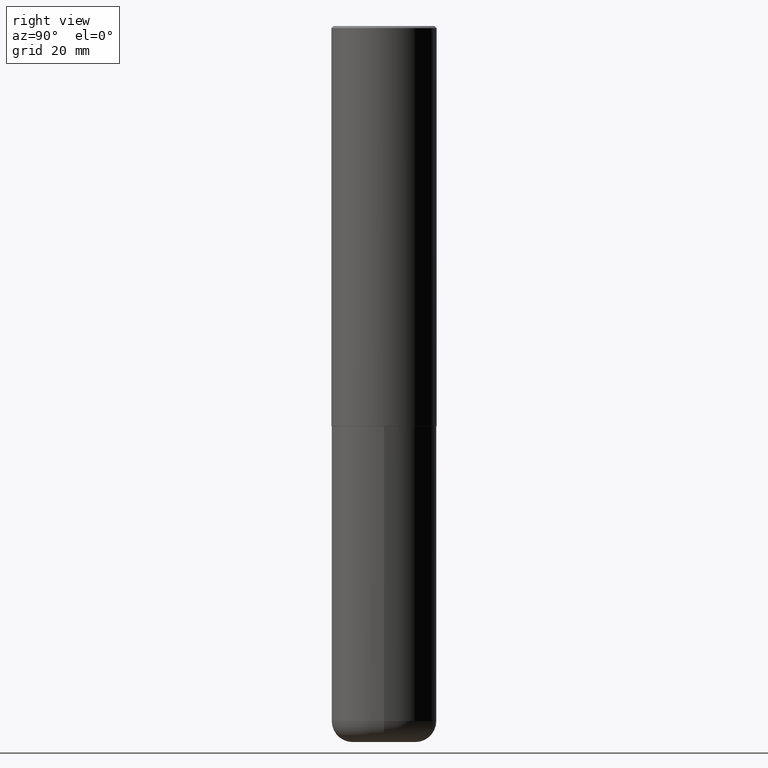
[diagram: clean part render]
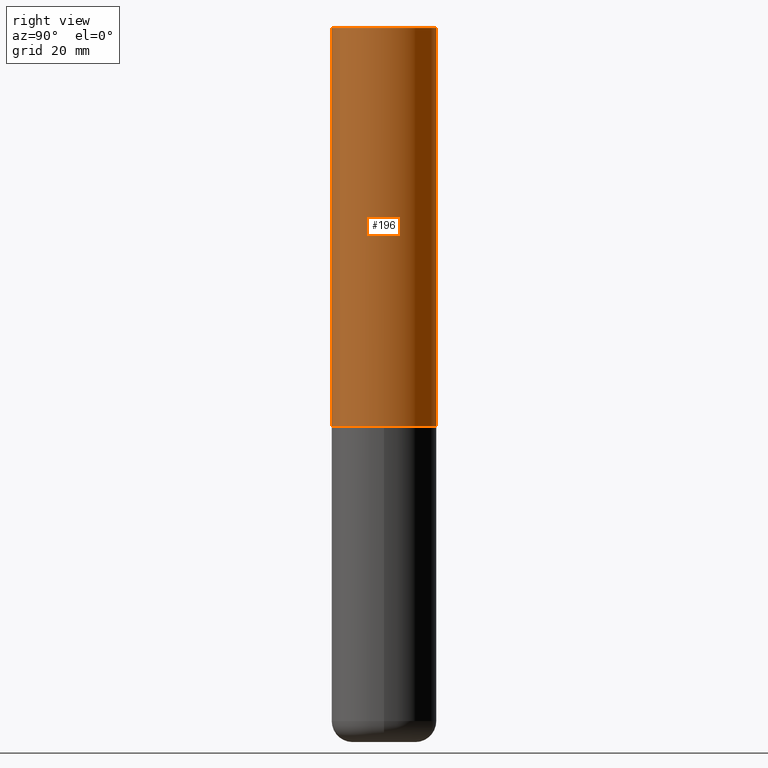
[diagram: same view with one face highlighted and labeled with its STEP entity id]
A machine part, right view. The second image highlights one B-rep face of the part: STEP entity #196.
In plain terms, the highlighted cylindrical surface (partial cylindrical patch) has radius 12.5006 mm, axis along (-0, 0, 1).
Its self-contained STEP definition (entity closure, byte-faithful):
#1 = VECTOR ( 'NONE', #215, 39.37007874015748143 ) ;
#11 = CYLINDRICAL_SURFACE ( 'NONE', #338, 0.4921500000000000874 ) ;
#22 = AXIS2_PLACEMENT_3D ( 'NONE', #302, #137, #390 ) ;
#37 = CARTESIAN_POINT ( 'NONE',  ( -3.436665081823207030E-15, -0.4921500000000134101, -3.739099999999998758 ) ) ;
#48 = VERTEX_POINT ( 'NONE', #37 ) ;
#77 = CARTESIAN_POINT ( 'NONE',  ( 3.496936074043333291E-15, 0.4921500000000000874, -1.717974658438411319E-15 ) ) ;
#81 = ORIENTED_EDGE ( 'NONE', *, *, #104, .F. ) ;
#98 = LINE ( 'NONE', #77, #1 ) ;
#104 = EDGE_CURVE ( 'NONE', #321, #332, #313, .T. ) ;
#111 = CARTESIAN_POINT ( 'NONE',  ( 4.891953188903329688E-31, -6.981508314288001687E-17, -0.02000000000000010797 ) ) ;
#115 = ORIENTED_EDGE ( 'NONE', *, *, #183, .T. ) ;
#125 = VERTEX_POINT ( 'NONE', #249 ) ;
#131 = LINE ( 'NONE', #266, #240 ) ;
#137 = DIRECTION ( 'NONE',  ( -2.445976594451651952E-29, 3.490754157143982552E-15, 1.000000000000000000 ) ) ;
#177 = CIRCLE ( 'NONE', #22, 0.4921500000000003650 ) ;
#183 = EDGE_CURVE ( 'NONE', #125, #332, #98, .T. ) ;
#184 = AXIS2_PLACEMENT_3D ( 'NONE', #111, #310, #365 ) ;
#196 = ADVANCED_FACE ( 'NONE', ( #339 ), #11, .T. ) ;
#215 = DIRECTION ( 'NONE',  ( -2.445976594451651672E-29, 3.490754157143982552E-15, 1.000000000000000000 ) ) ;
#218 = ORIENTED_EDGE ( 'NONE', *, *, #399, .T. ) ;
#226 = EDGE_CURVE ( 'NONE', #48, #321, #131, .T. ) ;
#237 = DIRECTION ( 'NONE',  ( -6.982962677686265922E-15, -1.000000000000000000, 3.490754157143982552E-15 ) ) ;
#240 = VECTOR ( 'NONE', #346, 39.37007874015748143 ) ;
#249 = CARTESIAN_POINT ( 'NONE',  ( 3.496936074043380229E-15, 0.4921499999999873198, -3.739100000000002311 ) ) ;
#266 = CARTESIAN_POINT ( 'NONE',  ( -3.436665081823296565E-15, -0.4921500000000000874, 1.717974658438411319E-15 ) ) ;
#286 = CARTESIAN_POINT ( 'NONE',  ( 0.000000000000000000, 0.000000000000000000, 0.000000000000000000 ) ) ;
#293 = ORIENTED_EDGE ( 'NONE', *, *, #226, .F. ) ;
#302 = CARTESIAN_POINT ( 'NONE',  ( 9.145751084314172604E-29, -1.305227886897706845E-14, -3.739100000000000534 ) ) ;
#310 = DIRECTION ( 'NONE',  ( -2.445976594451651952E-29, 3.490754157143982552E-15, 1.000000000000000000 ) ) ;
#313 = CIRCLE ( 'NONE', #184, 0.4921499999999999209 ) ;
#321 = VERTEX_POINT ( 'NONE', #387 ) ;
#332 = VERTEX_POINT ( 'NONE', #382 ) ;
#338 = AXIS2_PLACEMENT_3D ( 'NONE', #286, #389, #237 ) ;
#339 = FACE_OUTER_BOUND ( 'NONE', #381, .T. ) ;
#346 = DIRECTION ( 'NONE',  ( -2.445976594451651672E-29, 3.490754157143982552E-15, 1.000000000000000000 ) ) ;
#365 = DIRECTION ( 'NONE',  ( -6.982962677686265922E-15, -1.000000000000000000, 3.486624039460257331E-15 ) ) ;
#381 = EDGE_LOOP ( 'NONE', ( #218, #115, #81, #293 ) ) ;
#382 = CARTESIAN_POINT ( 'NONE',  ( 3.436665081823295777E-15, 0.4921499999999998098, -0.02000000000000182188 ) ) ;
#387 = CARTESIAN_POINT ( 'NONE',  ( -3.376394089603257868E-15, -0.4921499999999999764, -0.01999999999999839059 ) ) ;
#389 = DIRECTION ( 'NONE',  ( -2.445976594451651952E-29, 3.490754157143982552E-15, 1.000000000000000000 ) ) ;
#390 = DIRECTION ( 'NONE',  ( -6.982962677686265922E-15, -1.000000000000000000, 3.330506545156063496E-15 ) ) ;
#399 = EDGE_CURVE ( 'NONE', #48, #125, #177, .T. ) ;